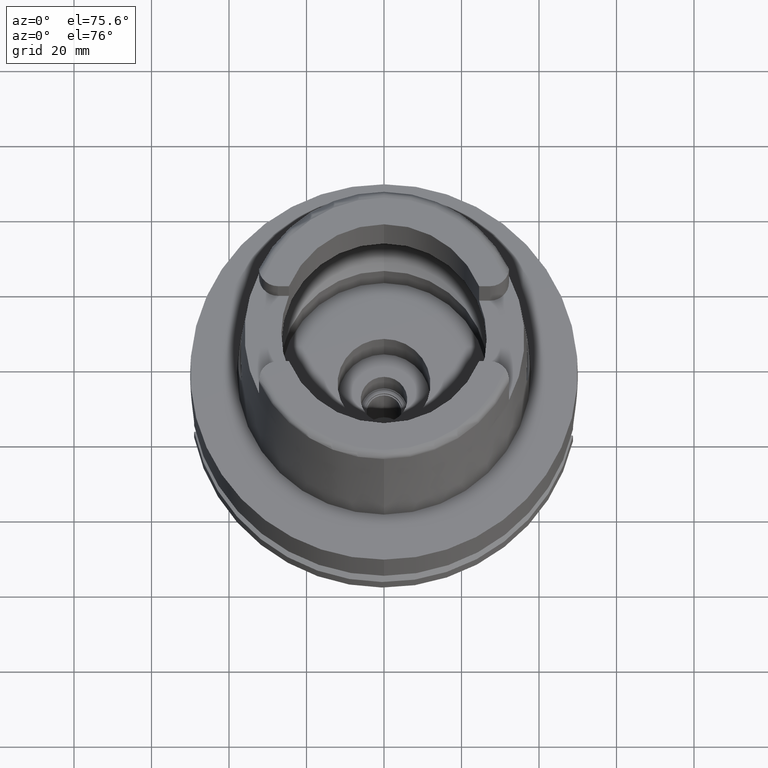
[diagram: clean part render]
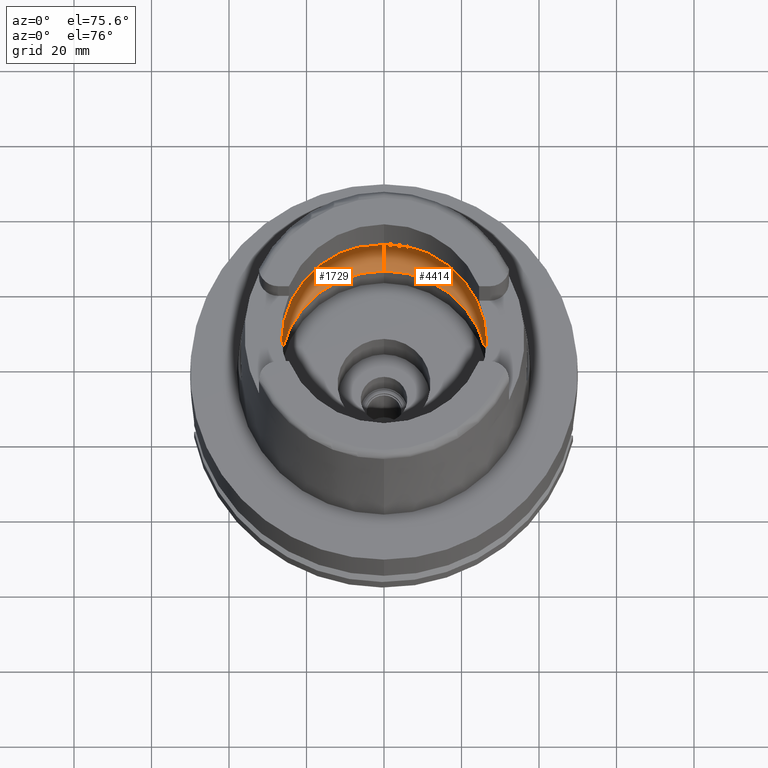
[diagram: same view with one multi-face feature highlighted, each face labeled with its STEP entity id]
A machine part, auxiliary view. The highlighted faces form ONE feature: a constant-radius fillet chain: 2 tangent blend faces with common blend radius 12 mm. The faces share edges in the B-rep.
Their STEP definitions:
[1] entity #1729 (Torus):
#320 = EDGE_CURVE ( 'NONE', #1196, #871, #2906, .T. ) ;
#612 = CARTESIAN_POINT ( 'NONE',  ( 0.0000000000000000000, 0.0000000000000000000, 0.04993178413034000257 ) ) ;
#716 = EDGE_CURVE ( 'NONE', #5319, #4849, #2223, .T. ) ;
#799 = ORIENTED_EDGE ( 'NONE', *, *, #5332, .F. ) ;
#832 = DIRECTION ( 'NONE',  ( 0.0000000000000000000, 1.000000000000000000, 0.0000000000000000000 ) ) ;
#871 = VERTEX_POINT ( 'NONE', #3116 ) ;
#877 = CARTESIAN_POINT ( 'NONE',  ( -31.40918884336000616, 2.390158196043999705, 9.496624327025999790 ) ) ;
#1196 = VERTEX_POINT ( 'NONE', #4016 ) ;
#1208 = AXIS2_PLACEMENT_3D ( 'NONE', #1748, #2260, #3416 ) ;
#1230 = EDGE_CURVE ( 'NONE', #3336, #5319, #4829, .T. ) ;
#1257 = DIRECTION ( 'NONE',  ( 0.0000000000000000000, 0.0000000000000000000, 1.000000000000000000 ) ) ;
#1297 = CIRCLE ( 'NONE', #1208, 31.49999999999998934 ) ;
#1299 = DIRECTION ( 'NONE',  ( 0.0000000000000000000, -1.000000000000000000, 0.0000000000000000000 ) ) ;
#1329 = CARTESIAN_POINT ( 'NONE',  ( -31.48971910754000447, 0.8697454016785111097, 9.000000000000001776 ) ) ;
#1513 = EDGE_CURVE ( 'NONE', #3336, #5391, #3625, .T. ) ;
#1622 = CARTESIAN_POINT ( 'NONE',  ( -31.46287568614665986, -1.684656700029165899, 9.190219625035021878 ) ) ;
#1668 = DIRECTION ( 'NONE',  ( 0.0000000000000000000, -0.6166666666667049990, -0.7872243785746061429 ) ) ;
#1729 = ADVANCED_FACE ( 'NONE', ( #4207 ), #5257, .F. ) ;
#1748 = CARTESIAN_POINT ( 'NONE',  ( 0.0000000000000000000, 0.0000000000000000000, 9.496624327025999790 ) ) ;
#1859 = DIRECTION ( 'NONE',  ( 1.000000000000000000, 0.0000000000000000000, 0.0000000000000000000 ) ) ;
#1860 = ORIENTED_EDGE ( 'NONE', *, *, #4269, .F. ) ;
#2101 = ORIENTED_EDGE ( 'NONE', *, *, #4289, .F. ) ;
#2223 = CIRCLE ( 'NONE', #3202, 11.99999999999999822 ) ;
#2260 = DIRECTION ( 'NONE',  ( 0.0000000000000000000, 0.0000000000000000000, -1.000000000000000000 ) ) ;
#2306 = CARTESIAN_POINT ( 'NONE',  ( -31.40918884336000616, 2.390158196043999705, 9.496624327025999790 ) ) ;
#2360 = EDGE_LOOP ( 'NONE', ( #1860, #4060, #4050, #2685, #799, #2101, #3369 ) ) ;
#2400 = AXIS2_PLACEMENT_3D ( 'NONE', #612, #1257, #832 ) ;
#2487 = DIRECTION ( 'NONE',  ( -1.000000000000000000, 0.0000000000000000000, 0.0000000000000000000 ) ) ;
#2563 = CARTESIAN_POINT ( 'NONE',  ( 0.0000000000000000000, 31.50000000000000000, 9.496624327025999790 ) ) ;
#2638 = CARTESIAN_POINT ( 'NONE',  ( 0.0000000000000000000, -31.50000000000000000, 9.496624327025999790 ) ) ;
#2685 = ORIENTED_EDGE ( 'NONE', *, *, #1513, .T. ) ;
#2829 = CARTESIAN_POINT ( 'NONE',  ( -31.40918884336000616, -2.390158196043999705, 9.496624327025999790 ) ) ;
#2906 = B_SPLINE_CURVE_WITH_KNOTS ( 'NONE', 3,
 ( #2829, #1622, #3323, #5041 ),
 .UNSPECIFIED., .F., .F.,
 ( 4, 4 ),
 ( 0.0000000000000000000, 1.000000000000000000 ),
 .UNSPECIFIED. ) ;
#2981 = CARTESIAN_POINT ( 'NONE',  ( 0.0000000000000000000, -26.89999999999999858, 0.04993178413034000257 ) ) ;
#3012 = CIRCLE ( 'NONE', #3104, 31.50000000000000000 ) ;
#3021 = CARTESIAN_POINT ( 'NONE',  ( -31.46287568614665986, 1.684656699916923683, 9.190219624986275093 ) ) ;
#3104 = AXIS2_PLACEMENT_3D ( 'NONE', #5552, #3459, #1299 ) ;
#3116 = CARTESIAN_POINT ( 'NONE',  ( -31.48971910754000447, 0.0000000000000000000, 9.000000000000000000 ) ) ;
#3202 = AXIS2_PLACEMENT_3D ( 'NONE', #5095, #2487, #1668 ) ;
#3286 = VERTEX_POINT ( 'NONE', #2306 ) ;
#3323 = CARTESIAN_POINT ( 'NONE',  ( -31.48971910754000447, -0.8697454018008697885, 8.999999999999998224 ) ) ;
#3336 = VERTEX_POINT ( 'NONE', #4536 ) ;
#3369 = ORIENTED_EDGE ( 'NONE', *, *, #320, .F. ) ;
#3416 = DIRECTION ( 'NONE',  ( -0.9971171061384295209, 0.07587803796965221503, 0.0000000000000000000 ) ) ;
#3448 = AXIS2_PLACEMENT_3D ( 'NONE', #4417, #1859, #3502 ) ;
#3459 = DIRECTION ( 'NONE',  ( 0.0000000000000000000, 0.0000000000000000000, -1.000000000000000000 ) ) ;
#3502 = DIRECTION ( 'NONE',  ( 0.0000000000000000000, 0.6166666666667049990, -0.7872243785746061429 ) ) ;
#3526 = DIRECTION ( 'NONE',  ( 0.0000000000000000000, 0.0000000000000000000, 1.000000000000000000 ) ) ;
#3625 = CIRCLE ( 'NONE', #3448, 11.99999999999999822 ) ;
#4016 = CARTESIAN_POINT ( 'NONE',  ( -31.40918884336000616, -2.390158196043999705, 9.496624327025999790 ) ) ;
#4050 = ORIENTED_EDGE ( 'NONE', *, *, #1230, .F. ) ;
#4060 = ORIENTED_EDGE ( 'NONE', *, *, #716, .F. ) ;
#4178 = AXIS2_PLACEMENT_3D ( 'NONE', #4805, #3526, #5313 ) ;
#4207 = FACE_OUTER_BOUND ( 'NONE', #2360, .T. ) ;
#4269 = EDGE_CURVE ( 'NONE', #4849, #1196, #3012, .T. ) ;
#4289 = EDGE_CURVE ( 'NONE', #871, #3286, #4708, .T. ) ;
#4417 = CARTESIAN_POINT ( 'NONE',  ( 0.0000000000000000000, 19.50000000000000000, 9.496624327025999790 ) ) ;
#4536 = CARTESIAN_POINT ( 'NONE',  ( 0.0000000000000000000, 26.89999999999999858, 0.04993178413034000257 ) ) ;
#4708 = B_SPLINE_CURVE_WITH_KNOTS ( 'NONE', 3,
 ( #5125, #1329, #3021, #877 ),
 .UNSPECIFIED., .F., .F.,
 ( 4, 4 ),
 ( 0.0000000000000000000, 1.000000000000000000 ),
 .UNSPECIFIED. ) ;
#4805 = CARTESIAN_POINT ( 'NONE',  ( 0.0000000000000000000, 0.0000000000000000000, 9.496624327025999790 ) ) ;
#4829 = CIRCLE ( 'NONE', #2400, 26.89999999999999858 ) ;
#4849 = VERTEX_POINT ( 'NONE', #2638 ) ;
#5041 = CARTESIAN_POINT ( 'NONE',  ( -31.48971910754000447, 0.0000000000000000000, 9.000000000000000000 ) ) ;
#5095 = CARTESIAN_POINT ( 'NONE',  ( 0.0000000000000000000, -19.50000000000000000, 9.496624327025999790 ) ) ;
#5125 = CARTESIAN_POINT ( 'NONE',  ( -31.48971910754000447, 0.0000000000000000000, 9.000000000000000000 ) ) ;
#5257 = TOROIDAL_SURFACE ( 'NONE', #4178, 19.50000000000000000, 12.00000000000000000 ) ;
#5313 = DIRECTION ( 'NONE',  ( 0.0000000000000000000, 1.000000000000000000, 0.0000000000000000000 ) ) ;
#5319 = VERTEX_POINT ( 'NONE', #2981 ) ;
#5332 = EDGE_CURVE ( 'NONE', #3286, #5391, #1297, .T. ) ;
#5391 = VERTEX_POINT ( 'NONE', #2563 ) ;
#5552 = CARTESIAN_POINT ( 'NONE',  ( 0.0000000000000000000, 0.0000000000000000000, 9.496624327025999790 ) ) ;
[2] entity #4414 (Torus):
#77 = DIRECTION ( 'NONE',  ( 0.0000000000000000000, 0.0000000000000000000, -1.000000000000000000 ) ) ;
#325 = B_SPLINE_CURVE_WITH_KNOTS ( 'NONE', 3,
 ( #3934, #5266, #2600, #1753 ),
 .UNSPECIFIED., .F., .F.,
 ( 4, 4 ),
 ( 0.0000000000000000000, 1.000000000000000000 ),
 .UNSPECIFIED. ) ;
#402 = CARTESIAN_POINT ( 'NONE',  ( 31.40918884336000616, -2.390158196043999705, 9.496624327025999790 ) ) ;
#567 = FACE_OUTER_BOUND ( 'NONE', #3631, .T. ) ;
#590 = ORIENTED_EDGE ( 'NONE', *, *, #3953, .F. ) ;
#670 = TOROIDAL_SURFACE ( 'NONE', #4539, 19.50000000000000000, 12.00000000000000000 ) ;
#716 = EDGE_CURVE ( 'NONE', #5319, #4849, #2223, .T. ) ;
#732 = DIRECTION ( 'NONE',  ( 0.0000000000000000000, 0.0000000000000000000, 1.000000000000000000 ) ) ;
#1273 = CARTESIAN_POINT ( 'NONE',  ( 0.0000000000000000000, 0.0000000000000000000, 0.04993178413034000257 ) ) ;
#1389 = DIRECTION ( 'NONE',  ( 0.0000000000000000000, 1.000000000000000000, 0.0000000000000000000 ) ) ;
#1392 = DIRECTION ( 'NONE',  ( 0.0000000000000000000, 1.000000000000000000, 0.0000000000000000000 ) ) ;
#1459 = ORIENTED_EDGE ( 'NONE', *, *, #2486, .F. ) ;
#1513 = EDGE_CURVE ( 'NONE', #3336, #5391, #3625, .T. ) ;
#1576 = ORIENTED_EDGE ( 'NONE', *, *, #3289, .F. ) ;
#1668 = DIRECTION ( 'NONE',  ( 0.0000000000000000000, -0.6166666666667049990, -0.7872243785746061429 ) ) ;
#1753 = CARTESIAN_POINT ( 'NONE',  ( 31.40918884336000616, -2.390158196043999705, 9.496624327025999790 ) ) ;
#1844 = CARTESIAN_POINT ( 'NONE',  ( 0.0000000000000000000, 0.0000000000000000000, 9.496624327025999790 ) ) ;
#1848 = DIRECTION ( 'NONE',  ( 0.9971171061384295209, -0.07587803796965221503, 0.0000000000000000000 ) ) ;
#1859 = DIRECTION ( 'NONE',  ( 1.000000000000000000, 0.0000000000000000000, 0.0000000000000000000 ) ) ;
#1875 = DIRECTION ( 'NONE',  ( 0.0000000000000000000, 0.0000000000000000000, 1.000000000000000000 ) ) ;
#1903 = CARTESIAN_POINT ( 'NONE',  ( 0.0000000000000000000, 0.0000000000000000000, 9.496624327025999790 ) ) ;
#2204 = EDGE_CURVE ( 'NONE', #4097, #4930, #5244, .T. ) ;
#2218 = CARTESIAN_POINT ( 'NONE',  ( 31.48971910754000447, 0.0000000000000000000, 9.000000000000000000 ) ) ;
#2223 = CIRCLE ( 'NONE', #3202, 11.99999999999999822 ) ;
#2290 = AXIS2_PLACEMENT_3D ( 'NONE', #1273, #732, #3402 ) ;
#2486 = EDGE_CURVE ( 'NONE', #5319, #3336, #5239, .T. ) ;
#2487 = DIRECTION ( 'NONE',  ( -1.000000000000000000, 0.0000000000000000000, 0.0000000000000000000 ) ) ;
#2563 = CARTESIAN_POINT ( 'NONE',  ( 0.0000000000000000000, 31.50000000000000000, 9.496624327025999790 ) ) ;
#2569 = ORIENTED_EDGE ( 'NONE', *, *, #1513, .F. ) ;
#2600 = CARTESIAN_POINT ( 'NONE',  ( 31.46287568614665986, -1.684656699965325632, 9.190219625007294724 ) ) ;
#2638 = CARTESIAN_POINT ( 'NONE',  ( 0.0000000000000000000, -31.50000000000000000, 9.496624327025999790 ) ) ;
#2958 = AXIS2_PLACEMENT_3D ( 'NONE', #3579, #77, #1392 ) ;
#2981 = CARTESIAN_POINT ( 'NONE',  ( 0.0000000000000000000, -26.89999999999999858, 0.04993178413034000257 ) ) ;
#3085 = CARTESIAN_POINT ( 'NONE',  ( 31.46287568614665986, 1.684656700008886121, 9.190219625026216477 ) ) ;
#3202 = AXIS2_PLACEMENT_3D ( 'NONE', #5095, #2487, #1668 ) ;
#3289 = EDGE_CURVE ( 'NONE', #5391, #4097, #5380, .T. ) ;
#3336 = VERTEX_POINT ( 'NONE', #4536 ) ;
#3402 = DIRECTION ( 'NONE',  ( 0.0000000000000000000, -1.000000000000000000, 0.0000000000000000000 ) ) ;
#3448 = AXIS2_PLACEMENT_3D ( 'NONE', #4417, #1859, #3502 ) ;
#3502 = DIRECTION ( 'NONE',  ( 0.0000000000000000000, 0.6166666666667049990, -0.7872243785746061429 ) ) ;
#3510 = CARTESIAN_POINT ( 'NONE',  ( 31.48971910754000447, 0.0000000000000000000, 9.000000000000000000 ) ) ;
#3579 = CARTESIAN_POINT ( 'NONE',  ( 0.0000000000000000000, 0.0000000000000000000, 9.496624327025999790 ) ) ;
#3625 = CIRCLE ( 'NONE', #3448, 11.99999999999999822 ) ;
#3631 = EDGE_LOOP ( 'NONE', ( #4680, #1576, #2569, #1459, #5069, #590, #5145 ) ) ;
#3934 = CARTESIAN_POINT ( 'NONE',  ( 31.48971910754000447, 0.0000000000000000000, 9.000000000000000000 ) ) ;
#3953 = EDGE_CURVE ( 'NONE', #4914, #4849, #4258, .T. ) ;
#4097 = VERTEX_POINT ( 'NONE', #4985 ) ;
#4258 = CIRCLE ( 'NONE', #4716, 31.49999999999998934 ) ;
#4414 = ADVANCED_FACE ( 'NONE', ( #567 ), #670, .F. ) ;
#4417 = CARTESIAN_POINT ( 'NONE',  ( 0.0000000000000000000, 19.50000000000000000, 9.496624327025999790 ) ) ;
#4487 = DIRECTION ( 'NONE',  ( 0.0000000000000000000, 0.0000000000000000000, -1.000000000000000000 ) ) ;
#4536 = CARTESIAN_POINT ( 'NONE',  ( 0.0000000000000000000, 26.89999999999999858, 0.04993178413034000257 ) ) ;
#4539 = AXIS2_PLACEMENT_3D ( 'NONE', #1844, #1875, #1389 ) ;
#4680 = ORIENTED_EDGE ( 'NONE', *, *, #2204, .F. ) ;
#4716 = AXIS2_PLACEMENT_3D ( 'NONE', #1903, #4487, #1848 ) ;
#4802 = CARTESIAN_POINT ( 'NONE',  ( 31.48971910753999026, 0.8697454017787721314, 9.000000000000001776 ) ) ;
#4849 = VERTEX_POINT ( 'NONE', #2638 ) ;
#4914 = VERTEX_POINT ( 'NONE', #402 ) ;
#4930 = VERTEX_POINT ( 'NONE', #3510 ) ;
#4985 = CARTESIAN_POINT ( 'NONE',  ( 31.40918884336000616, 2.390158196043999705, 9.496624327025999790 ) ) ;
#5021 = EDGE_CURVE ( 'NONE', #4930, #4914, #325, .T. ) ;
#5069 = ORIENTED_EDGE ( 'NONE', *, *, #716, .T. ) ;
#5095 = CARTESIAN_POINT ( 'NONE',  ( 0.0000000000000000000, -19.50000000000000000, 9.496624327025999790 ) ) ;
#5145 = ORIENTED_EDGE ( 'NONE', *, *, #5021, .F. ) ;
#5239 = CIRCLE ( 'NONE', #2290, 26.89999999999999858 ) ;
#5244 = B_SPLINE_CURVE_WITH_KNOTS ( 'NONE', 3,
 ( #5247, #3085, #4802, #2218 ),
 .UNSPECIFIED., .F., .F.,
 ( 4, 4 ),
 ( 0.0000000000000000000, 1.000000000000000000 ),
 .UNSPECIFIED. ) ;
#5247 = CARTESIAN_POINT ( 'NONE',  ( 31.40918884336000616, 2.390158196043999705, 9.496624327025999790 ) ) ;
#5266 = CARTESIAN_POINT ( 'NONE',  ( 31.48971910753999026, -0.8697454017312684638, 8.999999999999998224 ) ) ;
#5319 = VERTEX_POINT ( 'NONE', #2981 ) ;
#5380 = CIRCLE ( 'NONE', #2958, 31.50000000000000000 ) ;
#5391 = VERTEX_POINT ( 'NONE', #2563 ) ;